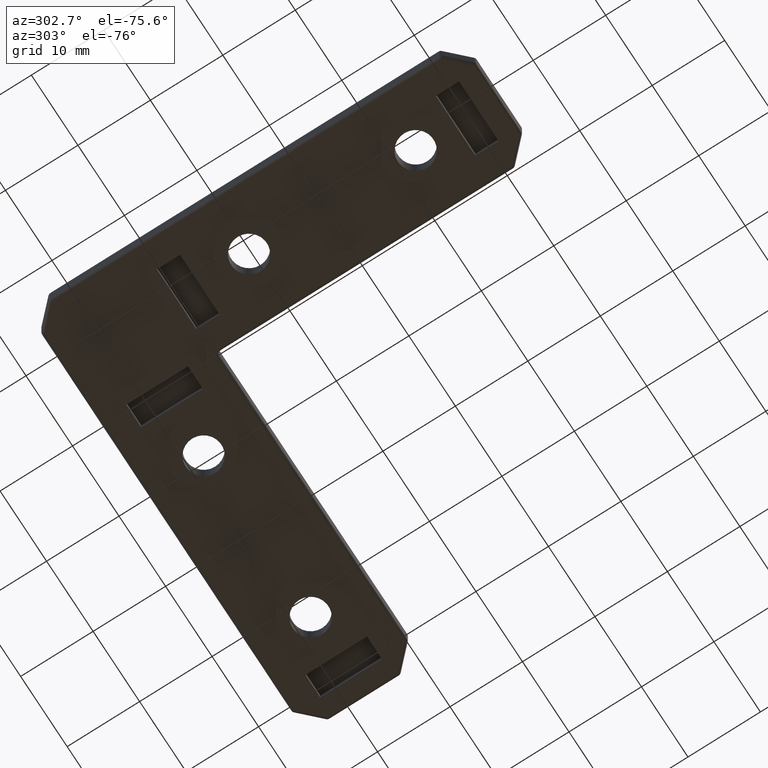
[diagram: clean part render]
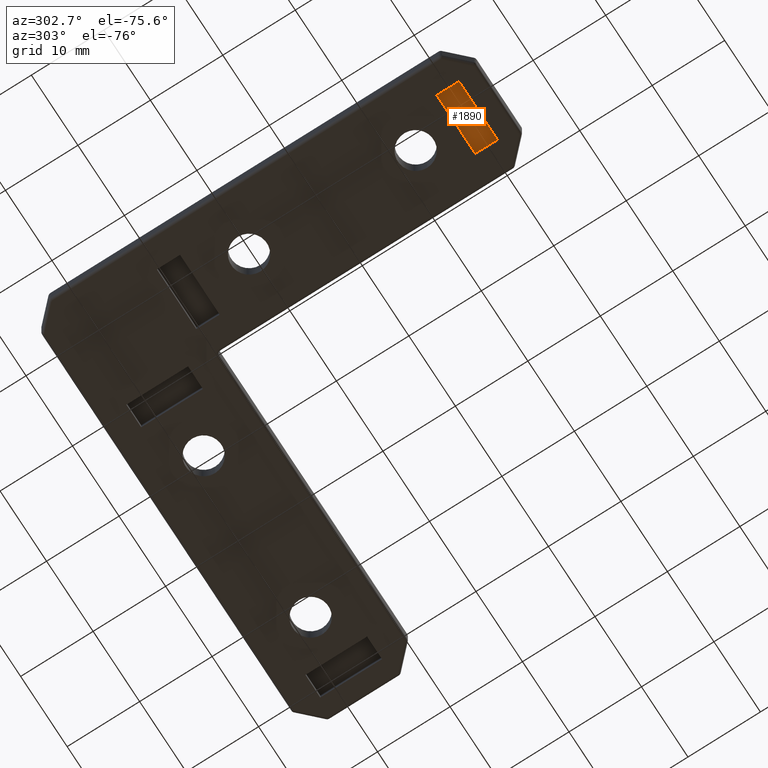
[diagram: same view with one face highlighted and labeled with its STEP entity id]
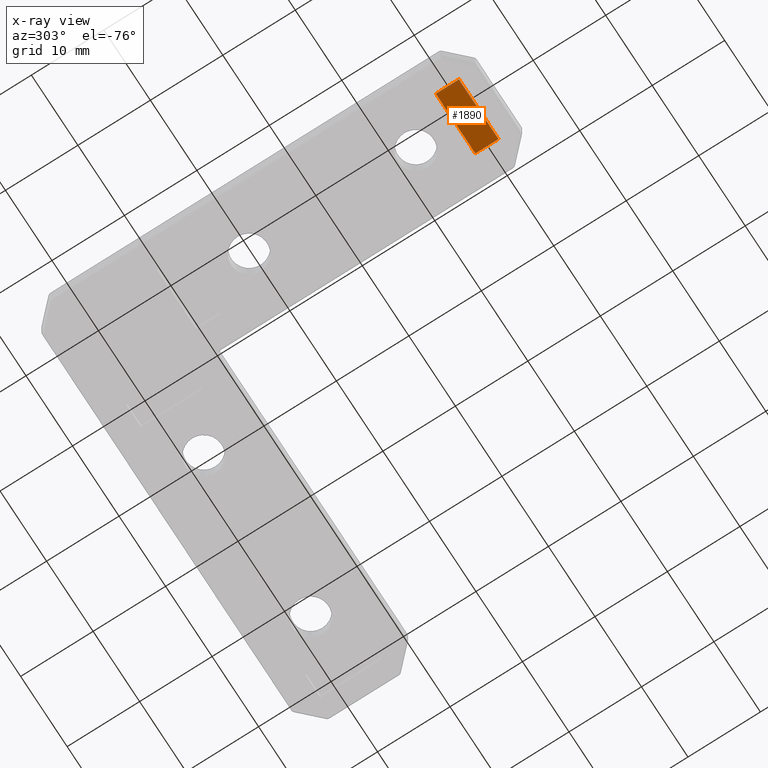
[diagram: x-ray of the same camera — body ghosted, the highlighted face saturated]
A machine part, auxiliary view. The second image highlights one B-rep face of the part: STEP entity #1890.
The next image is the same camera in x-ray: the body ghosted, the highlighted face saturated — about 0% of this face is hidden behind the body in this view.
In plain terms, the highlighted planar face has unit normal (0, 0, 1).
Its self-contained STEP definition (entity closure, byte-faithful):
#154=PLANE('',#2036);
#223=FACE_OUTER_BOUND('',#351,.T.);
#351=EDGE_LOOP('',(#1408,#1409,#1410,#1411));
#544=LINE('',#2996,#722);
#548=LINE('',#3003,#726);
#551=LINE('',#3009,#729);
#553=LINE('',#3012,#731);
#722=VECTOR('',#2371,3.2);
#726=VECTOR('',#2377,8.5);
#729=VECTOR('',#2382,3.2);
#731=VECTOR('',#2386,8.5);
#888=VERTEX_POINT('',#2993);
#889=VERTEX_POINT('',#2995);
#891=VERTEX_POINT('',#3001);
#893=VERTEX_POINT('',#3007);
#1072=EDGE_CURVE('',#888,#889,#544,.T.);
#1076=EDGE_CURVE('',#891,#888,#548,.T.);
#1079=EDGE_CURVE('',#893,#891,#551,.T.);
#1081=EDGE_CURVE('',#889,#893,#553,.T.);
#1408=ORIENTED_EDGE('',*,*,#1081,.F.);
#1409=ORIENTED_EDGE('',*,*,#1072,.F.);
#1410=ORIENTED_EDGE('',*,*,#1076,.F.);
#1411=ORIENTED_EDGE('',*,*,#1079,.F.);
#1890=ADVANCED_FACE('',(#223),#154,.F.);
#2036=AXIS2_PLACEMENT_3D('',#3013,#2387,#2388);
#2371=DIRECTION('',(0.,-1.,0.));
#2377=DIRECTION('',(-1.,0.,0.));
#2382=DIRECTION('',(0.,1.,0.));
#2386=DIRECTION('',(1.,0.,0.));
#2387=DIRECTION('center_axis',(0.,0.,1.));
#2388=DIRECTION('ref_axis',(1.,0.,0.));
#2993=CARTESIAN_POINT('',(-12.25,-38.,1.));
#2995=CARTESIAN_POINT('',(-12.25,-41.2,1.));
#2996=CARTESIAN_POINT('',(-12.25,-41.2,1.));
#3001=CARTESIAN_POINT('',(-3.75,-38.,1.));
#3003=CARTESIAN_POINT('',(-12.25,-38.,1.));
#3007=CARTESIAN_POINT('',(-3.75,-41.2,1.));
#3009=CARTESIAN_POINT('',(-3.75,-38.,1.));
#3012=CARTESIAN_POINT('',(-3.75,-41.2,1.));
#3013=CARTESIAN_POINT('Origin',(-8.,-39.6,1.));